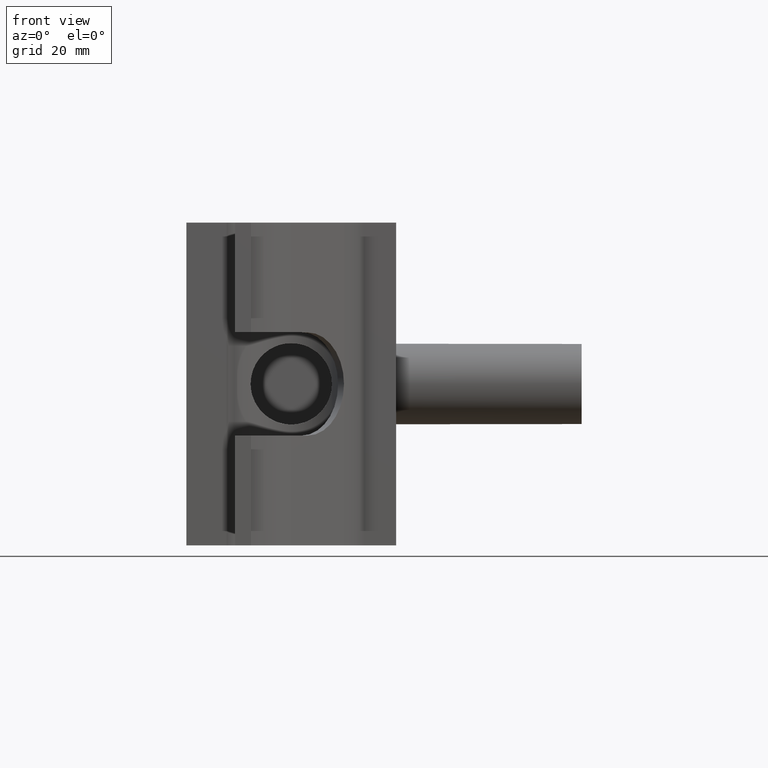
[diagram: clean part render]
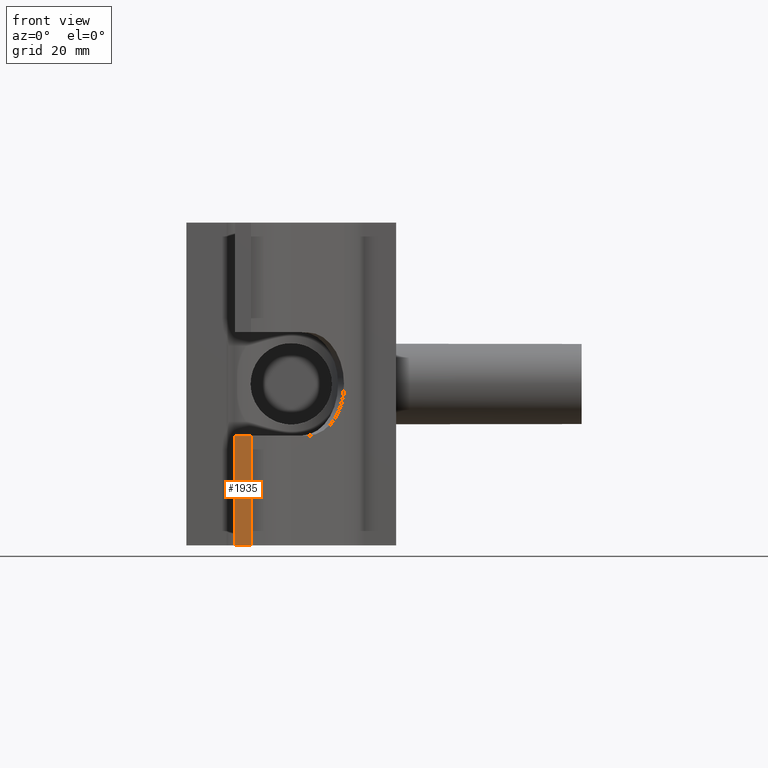
[diagram: same view with one face highlighted and labeled with its STEP entity id]
A machine part, front view. The second image highlights one B-rep face of the part: STEP entity #1935.
In plain terms, the highlighted planar face has unit normal (0, -1, 0).
Its self-contained STEP definition (entity closure, byte-faithful):
#310=FACE_OUTER_BOUND('',#448,.T.);
#448=EDGE_LOOP('',(#1678,#1679,#1680,#1681));
#571=LINE('',#3686,#720);
#582=LINE('',#3720,#731);
#585=LINE('',#3727,#734);
#586=LINE('',#3728,#735);
#720=VECTOR('',#2606,4.94999999999999);
#731=VECTOR('',#2641,34.);
#734=VECTOR('',#2648,4.94999999999999);
#735=VECTOR('',#2649,34.);
#914=VERTEX_POINT('',#3683);
#915=VERTEX_POINT('',#3685);
#926=VERTEX_POINT('',#3718);
#928=VERTEX_POINT('',#3726);
#1165=EDGE_CURVE('',#915,#914,#571,.T.);
#1183=EDGE_CURVE('',#914,#926,#582,.T.);
#1186=EDGE_CURVE('',#928,#926,#585,.T.);
#1187=EDGE_CURVE('',#915,#928,#586,.T.);
#1678=ORIENTED_EDGE('',*,*,#1165,.T.);
#1679=ORIENTED_EDGE('',*,*,#1183,.T.);
#1680=ORIENTED_EDGE('',*,*,#1186,.F.);
#1681=ORIENTED_EDGE('',*,*,#1187,.F.);
#1824=PLANE('',#2137);
#1935=ADVANCED_FACE('',(#310),#1824,.T.);
#2137=AXIS2_PLACEMENT_3D('',#3725,#2646,#2647);
#2606=DIRECTION('',(-1.,0.,6.8691545148979E-16));
#2641=DIRECTION('',(0.,0.,-1.));
#2646=DIRECTION('center_axis',(0.,-1.,0.));
#2647=DIRECTION('ref_axis',(-1.,0.,0.));
#2648=DIRECTION('',(-1.,0.,0.));
#2649=DIRECTION('',(0.,0.,-1.));
#3683=CARTESIAN_POINT('',(-17.3999249998828,-44.4031609369812,-16.));
#3685=CARTESIAN_POINT('',(-12.4499249998828,-44.4031609369812,-16.));
#3686=CARTESIAN_POINT('',(-4.6251216743875,-44.4031609369812,-16.));
#3718=CARTESIAN_POINT('',(-17.3999249998828,-44.4031609369812,-50.));
#3720=CARTESIAN_POINT('',(-17.3999249998828,-44.4031609369812,50.));
#3725=CARTESIAN_POINT('Origin',(-12.4499249998828,-44.4031609369812,50.));
#3726=CARTESIAN_POINT('',(-12.4499249998828,-44.4031609369812,-50.));
#3727=CARTESIAN_POINT('',(-2.44994374991211,-44.4031609369812,-50.));
#3728=CARTESIAN_POINT('',(-12.4499249998828,-44.4031609369812,50.));